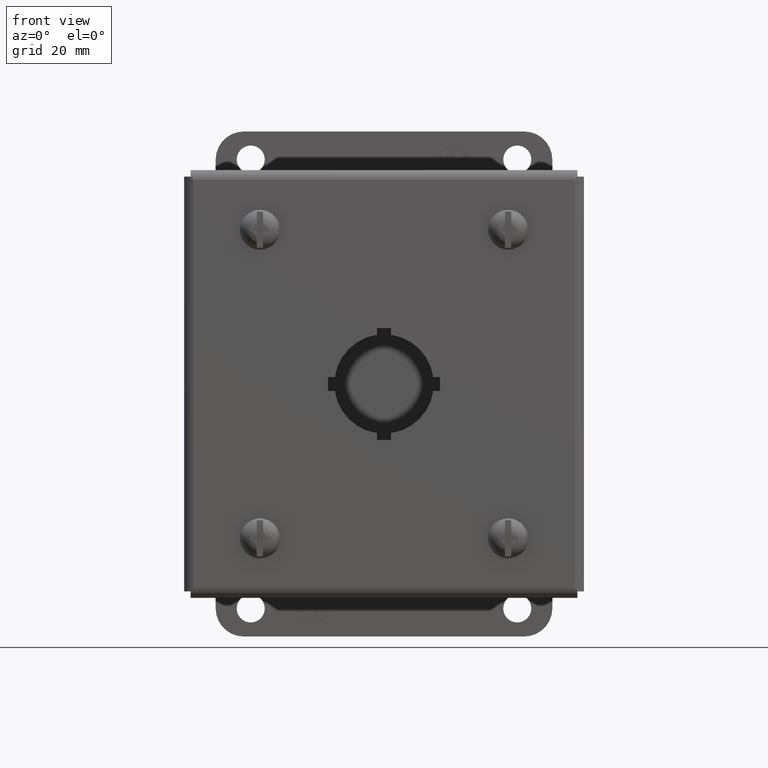
[diagram: clean part render]
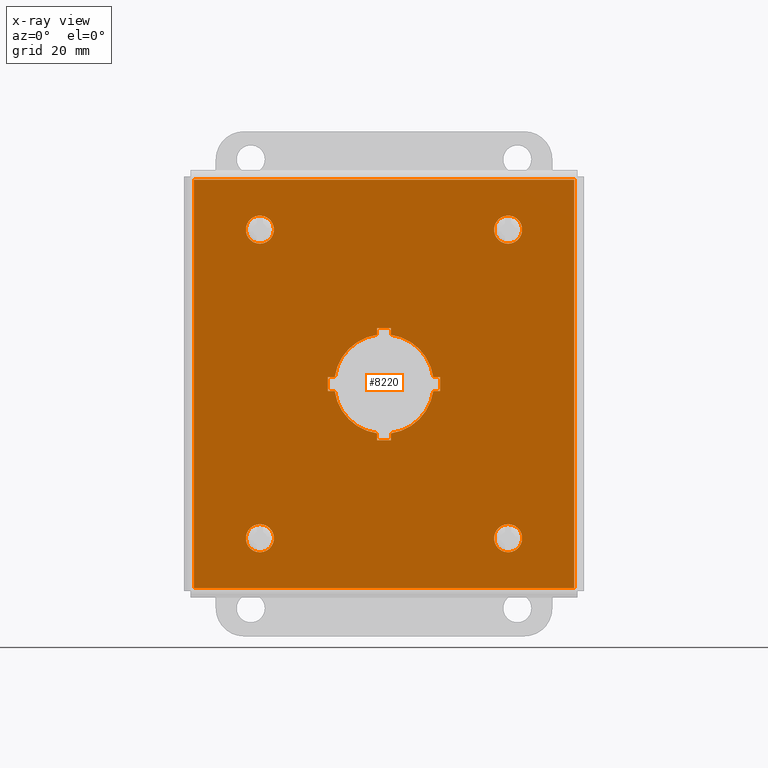
[diagram: x-ray — body ghosted, one internal face saturated and labeled with its STEP entity id]
A machine part, front view, then the same camera in x-ray: the body is ghosted and one INTERNAL B-rep face — a face not visible from any outside direction — is saturated and labeled: STEP entity #8220.
In plain terms, the highlighted planar face has unit normal (0, 1, -0).
Its self-contained STEP definition (entity closure, byte-faithful):
#18 = DIRECTION ( 'NONE',  ( -1.665334536937739988E-16, -2.077938280955059908E-16, -1.000000000000000000 ) ) ;
#203 = DIRECTION ( 'NONE',  ( 7.216449660063512582E-16, 0.0000000000000000000, -1.000000000000000000 ) ) ;
#209 = VERTEX_POINT ( 'NONE', #6006 ) ;
#248 = CARTESIAN_POINT ( 'NONE',  ( -1.695000000000001394, -2.849999999999995648, 1.820000000000002061 ) ) ;
#286 = ORIENTED_EDGE ( 'NONE', *, *, #12027, .T. ) ;
#329 = DIRECTION ( 'NONE',  ( -1.000000000000000000, 1.820053914654879712E-16, 1.665334536937739494E-16 ) ) ;
#417 = VECTOR ( 'NONE', #9454, 39.37007874015748143 ) ;
#459 = VERTEX_POINT ( 'NONE', #248 ) ;
#640 = CIRCLE ( 'NONE', #8115, 0.1249999999999999029 ) ;
#652 = ORIENTED_EDGE ( 'NONE', *, *, #4583, .T. ) ;
#693 = DIRECTION ( 'NONE',  ( 1.000000000000000000, -1.820053914654879712E-16, -1.665334536937739494E-16 ) ) ;
#800 = ORIENTED_EDGE ( 'NONE', *, *, #11053, .T. ) ;
#856 = DIRECTION ( 'NONE',  ( 0.0000000000000000000, 0.0000000000000000000, -1.000000000000000000 ) ) ;
#873 = DIRECTION ( 'NONE',  ( 0.0000000000000000000, 0.0000000000000000000, -1.000000000000000000 ) ) ;
#927 = VECTOR ( 'NONE', #9736, 39.37007874015748143 ) ;
#1003 = VECTOR ( 'NONE', #18, 39.37007874015748143 ) ;
#1010 = CARTESIAN_POINT ( 'NONE',  ( -0.06249999999999970857, -2.849999999999996536, -1.905999999999999028 ) ) ;
#1092 = CARTESIAN_POINT ( 'NONE',  ( 0.06250000000000073552, -2.849999999999996536, -1.905999999999999028 ) ) ;
#1105 = VERTEX_POINT ( 'NONE', #7803 ) ;
#1136 = ORIENTED_EDGE ( 'NONE', *, *, #14005, .T. ) ;
#1168 = DIRECTION ( 'NONE',  ( -1.820053914654879712E-16, -1.000000000000000000, 2.077938280955060154E-16 ) ) ;
#1188 = VERTEX_POINT ( 'NONE', #13810 ) ;
#1223 = DIRECTION ( 'NONE',  ( -1.820053914654879712E-16, -1.000000000000000000, 2.077938280955060154E-16 ) ) ;
#1307 = CARTESIAN_POINT ( 'NONE',  ( 1.106000000000000094, -2.849999999999996536, -1.249999999999999334 ) ) ;
#1333 = DIRECTION ( 'NONE',  ( -1.820053914654879712E-16, -1.000000000000000000, 2.077938280955060154E-16 ) ) ;
#1348 = EDGE_CURVE ( 'NONE', #1188, #459, #5438, .T. ) ;
#1355 = EDGE_CURVE ( 'NONE', #9677, #209, #4401, .T. ) ;
#1458 = LINE ( 'NONE', #3512, #4715 ) ;
#1499 = VERTEX_POINT ( 'NONE', #2602 ) ;
#1525 = ORIENTED_EDGE ( 'NONE', *, *, #12768, .T. ) ;
#1532 = DIRECTION ( 'NONE',  ( -1.820053914654879712E-16, -1.000000000000000000, 2.077938280955060154E-16 ) ) ;
#1574 = ORIENTED_EDGE ( 'NONE', *, *, #4890, .T. ) ;
#1677 = CARTESIAN_POINT ( 'NONE',  ( 1.781000000000000583, -2.849999999999996536, -0.06349999999999930700 ) ) ;
#1796 = VECTOR ( 'NONE', #12936, 39.37007874015748143 ) ;
#1838 = CARTESIAN_POINT ( 'NONE',  ( -1.105999999999999650, -2.849999999999995648, 1.250000000000001332 ) ) ;
#1899 = CARTESIAN_POINT ( 'NONE',  ( 0.5000000000000002220, -2.849999999999996092, -0.06349999999999908495 ) ) ;
#2015 = CARTESIAN_POINT ( 'NONE',  ( 1.781000000000000139, -2.849999999999996536, -1.905999999999999250 ) ) ;
#2077 = ORIENTED_EDGE ( 'NONE', *, *, #10234, .T. ) ;
#2173 = CIRCLE ( 'NONE', #5823, 0.4430000000000000049 ) ;
#2193 = AXIS2_PLACEMENT_3D ( 'NONE', #11035, #1532, #5869 ) ;
#2199 = CARTESIAN_POINT ( 'NONE',  ( -1.106000000000000094, -2.849999999999996092, -1.374999999999998668 ) ) ;
#2393 = ORIENTED_EDGE ( 'NONE', *, *, #7149, .T. ) ;
#2406 = EDGE_LOOP ( 'NONE', ( #3181, #800 ) ) ;
#2460 = VERTEX_POINT ( 'NONE', #5458 ) ;
#2504 = DIRECTION ( 'NONE',  ( 0.0000000000000000000, 0.0000000000000000000, -1.000000000000000000 ) ) ;
#2526 = DIRECTION ( 'NONE',  ( 0.0000000000000000000, 0.0000000000000000000, -1.000000000000000000 ) ) ;
#2535 = VERTEX_POINT ( 'NONE', #6432 ) ;
#2553 = VERTEX_POINT ( 'NONE', #14046 ) ;
#2602 = CARTESIAN_POINT ( 'NONE',  ( 1.694999999999999174, -2.849999999999996092, 1.820000000000002061 ) ) ;
#2669 = DIRECTION ( 'NONE',  ( -1.820053914654879712E-16, -1.000000000000000000, 2.077938280955060154E-16 ) ) ;
#2730 = AXIS2_PLACEMENT_3D ( 'NONE', #2015, #3367, #8604 ) ;
#2744 = EDGE_CURVE ( 'NONE', #11993, #6584, #11841, .T. ) ;
#2769 = VERTEX_POINT ( 'NONE', #13840 ) ;
#2782 = VERTEX_POINT ( 'NONE', #7294 ) ;
#2925 = ORIENTED_EDGE ( 'NONE', *, *, #3257, .T. ) ;
#2961 = CARTESIAN_POINT ( 'NONE',  ( -0.4999999999999996669, -2.849999999999996092, -0.06350000000000004252 ) ) ;
#2976 = CARTESIAN_POINT ( 'NONE',  ( 1.781000000000000583, -2.849999999999996536, -0.06350000000000038947 ) ) ;
#3014 = AXIS2_PLACEMENT_3D ( 'NONE', #10522, #11723, #6327 ) ;
#3180 = EDGE_CURVE ( 'NONE', #2769, #11993, #7457, .T. ) ;
#3181 = ORIENTED_EDGE ( 'NONE', *, *, #12422, .T. ) ;
#3183 = CARTESIAN_POINT ( 'NONE',  ( -0.06250000000000018041, -2.849999999999996092, -0.5009999999999991127 ) ) ;
#3245 = VECTOR ( 'NONE', #12086, 39.37007874015748143 ) ;
#3257 = EDGE_CURVE ( 'NONE', #11938, #13709, #4200, .T. ) ;
#3285 = CARTESIAN_POINT ( 'NONE',  ( 1.781000000000000139, -2.849999999999996536, -1.819999999999999396 ) ) ;
#3311 = CARTESIAN_POINT ( 'NONE',  ( 0.06250000000000073552, -2.849999999999996536, -1.905999999999999028 ) ) ;
#3365 = LINE ( 'NONE', #13867, #4061 ) ;
#3367 = DIRECTION ( 'NONE',  ( 1.820053914654879465E-16, 1.000000000000000000, -2.077938280955060154E-16 ) ) ;
#3386 = VECTOR ( 'NONE', #9748, 39.37007874015748143 ) ;
#3512 = CARTESIAN_POINT ( 'NONE',  ( 1.781000000000000583, -2.849999999999996092, 0.4990000000000007208 ) ) ;
#3602 = AXIS2_PLACEMENT_3D ( 'NONE', #2199, #9508, #856 ) ;
#3637 = DIRECTION ( 'NONE',  ( 1.000000000000000000, -1.820053914654879712E-16, -1.665334536937739494E-16 ) ) ;
#3685 = VERTEX_POINT ( 'NONE', #8710 ) ;
#3711 = CARTESIAN_POINT ( 'NONE',  ( 1.695000000000002505, -2.849999999999996536, -1.819999999999997620 ) ) ;
#3803 = CARTESIAN_POINT ( 'NONE',  ( 0.06250000000000062450, -2.849999999999996092, -0.4395689797511896368 ) ) ;
#4061 = VECTOR ( 'NONE', #4215, 39.37007874015748143 ) ;
#4133 = CARTESIAN_POINT ( 'NONE',  ( 1.695000000000000062, -2.849999999999996536, -1.905999999999999250 ) ) ;
#4165 = DIRECTION ( 'NONE',  ( 0.0000000000000000000, 0.0000000000000000000, -1.000000000000000000 ) ) ;
#4200 = LINE ( 'NONE', #8590, #12946 ) ;
#4215 = DIRECTION ( 'NONE',  ( 1.000000000000000000, -1.820053914654879712E-16, -1.665334536937739494E-16 ) ) ;
#4288 = FACE_BOUND ( 'NONE', #10444, .T. ) ;
#4289 = EDGE_CURVE ( 'NONE', #6584, #12831, #5751, .T. ) ;
#4311 = EDGE_CURVE ( 'NONE', #1105, #11938, #13735, .T. ) ;
#4401 = CIRCLE ( 'NONE', #7326, 0.1249999999999999029 ) ;
#4511 = CIRCLE ( 'NONE', #12437, 0.1249999999999999029 ) ;
#4561 = CARTESIAN_POINT ( 'NONE',  ( -0.06249999999999880651, -2.849999999999996092, 0.4375689797511911339 ) ) ;
#4583 = EDGE_CURVE ( 'NONE', #3685, #6076, #6410, .T. ) ;
#4591 = VERTEX_POINT ( 'NONE', #11176 ) ;
#4625 = CIRCLE ( 'NONE', #3014, 0.4430000000000000049 ) ;
#4715 = VECTOR ( 'NONE', #329, 39.37007874015748143 ) ;
#4890 = EDGE_CURVE ( 'NONE', #12343, #1105, #4625, .T. ) ;
#4911 = ORIENTED_EDGE ( 'NONE', *, *, #10982, .T. ) ;
#4917 = EDGE_CURVE ( 'NONE', #6188, #1188, #13487, .T. ) ;
#5109 = EDGE_LOOP ( 'NONE', ( #1525, #6906 ) ) ;
#5401 = CARTESIAN_POINT ( 'NONE',  ( -0.06250000000000052736, -2.849999999999996092, -0.4395689797511946884 ) ) ;
#5413 = CARTESIAN_POINT ( 'NONE',  ( -1.106000000000000094, -2.849999999999996092, -1.249999999999998668 ) ) ;
#5438 = LINE ( 'NONE', #8758, #9829 ) ;
#5458 = CARTESIAN_POINT ( 'NONE',  ( -0.4385689797511952426, -2.849999999999996092, 0.06150000000000145628 ) ) ;
#5469 = CARTESIAN_POINT ( 'NONE',  ( 0.4385689797511907462, -2.849999999999996092, 0.06149999999999967298 ) ) ;
#5595 = DIRECTION ( 'NONE',  ( -1.820053914654879712E-16, -1.000000000000000000, 2.077938280955060154E-16 ) ) ;
#5639 = EDGE_LOOP ( 'NONE', ( #12931, #6179, #6022, #8260 ) ) ;
#5751 = CIRCLE ( 'NONE', #7302, 0.4430000000000000049 ) ;
#5823 = AXIS2_PLACEMENT_3D ( 'NONE', #13067, #10937, #7737 ) ;
#5840 = VERTEX_POINT ( 'NONE', #11321 ) ;
#5844 = VECTOR ( 'NONE', #8643, 39.37007874015748143 ) ;
#5869 = DIRECTION ( 'NONE',  ( 0.0000000000000000000, 0.0000000000000000000, -1.000000000000000000 ) ) ;
#5914 = CARTESIAN_POINT ( 'NONE',  ( 0.06250000000000095757, -2.849999999999996092, -0.5009999999999991127 ) ) ;
#5965 = EDGE_CURVE ( 'NONE', #1499, #6188, #8527, .T. ) ;
#6006 = CARTESIAN_POINT ( 'NONE',  ( -1.106000000000000094, -2.849999999999996092, -1.499999999999998446 ) ) ;
#6022 = ORIENTED_EDGE ( 'NONE', *, *, #1348, .T. ) ;
#6076 = VERTEX_POINT ( 'NONE', #1307 ) ;
#6179 = ORIENTED_EDGE ( 'NONE', *, *, #4917, .T. ) ;
#6188 = VERTEX_POINT ( 'NONE', #3711 ) ;
#6319 = ORIENTED_EDGE ( 'NONE', *, *, #4289, .T. ) ;
#6327 = DIRECTION ( 'NONE',  ( -1.665334536937740234E-16, 0.0000000000000000000, -1.000000000000000000 ) ) ;
#6365 = DIRECTION ( 'NONE',  ( -1.820053914654879712E-16, -1.000000000000000000, 2.077938280955060154E-16 ) ) ;
#6382 = CARTESIAN_POINT ( 'NONE',  ( 1.106000000000000760, -2.849999999999996092, 1.250000000000000888 ) ) ;
#6410 = CIRCLE ( 'NONE', #8913, 0.1249999999999999029 ) ;
#6432 = CARTESIAN_POINT ( 'NONE',  ( 0.06250000000000112410, -2.849999999999996092, 0.4375689797511964629 ) ) ;
#6483 = VECTOR ( 'NONE', #7637, 39.37007874015748143 ) ;
#6506 = VERTEX_POINT ( 'NONE', #5469 ) ;
#6556 = CARTESIAN_POINT ( 'NONE',  ( 1.106000000000000094, -2.849999999999996536, -1.374999999999999112 ) ) ;
#6584 = VERTEX_POINT ( 'NONE', #13610 ) ;
#6715 = ORIENTED_EDGE ( 'NONE', *, *, #9024, .T. ) ;
#6738 = AXIS2_PLACEMENT_3D ( 'NONE', #8657, #1223, #2504 ) ;
#6906 = ORIENTED_EDGE ( 'NONE', *, *, #1355, .T. ) ;
#7030 = EDGE_CURVE ( 'NONE', #2460, #2769, #7127, .T. ) ;
#7031 = LINE ( 'NONE', #10095, #10351 ) ;
#7127 = LINE ( 'NONE', #11874, #3386 ) ;
#7135 = EDGE_CURVE ( 'NONE', #459, #1499, #3365, .T. ) ;
#7149 = EDGE_CURVE ( 'NONE', #10332, #12343, #11801, .T. ) ;
#7175 = CIRCLE ( 'NONE', #6738, 0.1249999999999999029 ) ;
#7294 = CARTESIAN_POINT ( 'NONE',  ( -1.105999999999999650, -2.849999999999995648, 1.500000000000001110 ) ) ;
#7302 = AXIS2_PLACEMENT_3D ( 'NONE', #8770, #5595, #203 ) ;
#7326 = AXIS2_PLACEMENT_3D ( 'NONE', #9830, #2669, #2526 ) ;
#7457 = LINE ( 'NONE', #10724, #927 ) ;
#7471 = FACE_OUTER_BOUND ( 'NONE', #5639, .T. ) ;
#7491 = DIRECTION ( 'NONE',  ( -1.820053914654879712E-16, -1.000000000000000000, 2.077938280955060154E-16 ) ) ;
#7529 = CARTESIAN_POINT ( 'NONE',  ( 1.106000000000000760, -2.849999999999996092, 1.375000000000000666 ) ) ;
#7637 = DIRECTION ( 'NONE',  ( 1.665334536937739988E-16, 2.077938280955059908E-16, 1.000000000000000000 ) ) ;
#7673 = DIRECTION ( 'NONE',  ( 1.665334536937739988E-16, 2.077938280955059908E-16, 1.000000000000000000 ) ) ;
#7696 = CARTESIAN_POINT ( 'NONE',  ( 0.5000000000000002220, -2.849999999999996092, 0.06150000000000022810 ) ) ;
#7737 = DIRECTION ( 'NONE',  ( -1.665334536937740234E-16, 0.0000000000000000000, -1.000000000000000000 ) ) ;
#7752 = CARTESIAN_POINT ( 'NONE',  ( -0.06250000000000080491, -2.849999999999996536, -1.905999999999999028 ) ) ;
#7803 = CARTESIAN_POINT ( 'NONE',  ( 0.4385689797511959087, -2.849999999999996092, -0.06349999999999907108 ) ) ;
#7806 = ORIENTED_EDGE ( 'NONE', *, *, #11238, .T. ) ;
#7816 = LINE ( 'NONE', #12289, #11016 ) ;
#7891 = DIRECTION ( 'NONE',  ( -1.000000000000000000, 1.820053914654879712E-16, 1.665334536937739494E-16 ) ) ;
#7939 = EDGE_CURVE ( 'NONE', #6076, #3685, #10651, .T. ) ;
#7942 = DIRECTION ( 'NONE',  ( -1.000000000000000000, 1.820053914654879712E-16, 1.665334536937739494E-16 ) ) ;
#8115 = AXIS2_PLACEMENT_3D ( 'NONE', #9551, #7491, #4165 ) ;
#8220 = ADVANCED_FACE ( 'NONE', ( #7471, #9750, #11803, #10885, #8748, #4288 ), #9605, .T. ) ;
#8260 = ORIENTED_EDGE ( 'NONE', *, *, #7135, .T. ) ;
#8309 = CIRCLE ( 'NONE', #2193, 0.1249999999999999029 ) ;
#8392 = EDGE_CURVE ( 'NONE', #12831, #9030, #9184, .T. ) ;
#8463 = CIRCLE ( 'NONE', #13918, 0.4430000000000000049 ) ;
#8527 = LINE ( 'NONE', #4133, #1003 ) ;
#8549 = VERTEX_POINT ( 'NONE', #6382 ) ;
#8590 = CARTESIAN_POINT ( 'NONE',  ( 0.4999999999999997780, -2.849999999999996536, -1.905999999999999028 ) ) ;
#8594 = DIRECTION ( 'NONE',  ( -1.820053914654879712E-16, -1.000000000000000000, 2.077938280955060154E-16 ) ) ;
#8596 = ORIENTED_EDGE ( 'NONE', *, *, #7939, .T. ) ;
#8604 = DIRECTION ( 'NONE',  ( -1.665334536937739988E-16, -2.077938280955059908E-16, -1.000000000000000000 ) ) ;
#8643 = DIRECTION ( 'NONE',  ( 1.000000000000000000, -1.820053914654879712E-16, -1.665334536937739494E-16 ) ) ;
#8657 = CARTESIAN_POINT ( 'NONE',  ( -1.105999999999999650, -2.849999999999995648, 1.375000000000001332 ) ) ;
#8710 = CARTESIAN_POINT ( 'NONE',  ( 1.106000000000000094, -2.849999999999996536, -1.499999999999999112 ) ) ;
#8748 = FACE_BOUND ( 'NONE', #2406, .T. ) ;
#8758 = CARTESIAN_POINT ( 'NONE',  ( -1.695000000000003837, -2.849999999999996092, -1.905999999999998806 ) ) ;
#8770 = CARTESIAN_POINT ( 'NONE',  ( 2.833925732262653705E-16, -2.849999999999996092, -0.0009999999999993299839 ) ) ;
#8791 = ORIENTED_EDGE ( 'NONE', *, *, #4311, .T. ) ;
#8855 = VERTEX_POINT ( 'NONE', #1838 ) ;
#8897 = EDGE_LOOP ( 'NONE', ( #1136, #286 ) ) ;
#8902 = ORIENTED_EDGE ( 'NONE', *, *, #3180, .T. ) ;
#8913 = AXIS2_PLACEMENT_3D ( 'NONE', #6556, #1168, #10041 ) ;
#9008 = ORIENTED_EDGE ( 'NONE', *, *, #10477, .T. ) ;
#9024 = EDGE_CURVE ( 'NONE', #9914, #2460, #8463, .T. ) ;
#9030 = VERTEX_POINT ( 'NONE', #3183 ) ;
#9070 = AXIS2_PLACEMENT_3D ( 'NONE', #10974, #1333, #9915 ) ;
#9184 = LINE ( 'NONE', #7752, #3245 ) ;
#9454 = DIRECTION ( 'NONE',  ( -1.665334536937739988E-16, -2.077938280955059908E-16, -1.000000000000000000 ) ) ;
#9508 = DIRECTION ( 'NONE',  ( -1.820053914654879712E-16, -1.000000000000000000, 2.077938280955060154E-16 ) ) ;
#9551 = CARTESIAN_POINT ( 'NONE',  ( -1.105999999999999650, -2.849999999999995648, 1.375000000000001332 ) ) ;
#9605 = PLANE ( 'NONE',  #2730 ) ;
#9624 = ORIENTED_EDGE ( 'NONE', *, *, #9859, .T. ) ;
#9677 = VERTEX_POINT ( 'NONE', #5413 ) ;
#9713 = CIRCLE ( 'NONE', #3602, 0.1249999999999999029 ) ;
#9736 = DIRECTION ( 'NONE',  ( -1.665334536937739988E-16, -2.077938280955059908E-16, -1.000000000000000000 ) ) ;
#9748 = DIRECTION ( 'NONE',  ( -1.000000000000000000, 1.820053914654879712E-16, 1.665334536937739494E-16 ) ) ;
#9750 = FACE_BOUND ( 'NONE', #8897, .T. ) ;
#9829 = VECTOR ( 'NONE', #13022, 39.37007874015748143 ) ;
#9830 = CARTESIAN_POINT ( 'NONE',  ( -1.106000000000000094, -2.849999999999996092, -1.374999999999998668 ) ) ;
#9835 = EDGE_CURVE ( 'NONE', #6506, #2535, #2173, .T. ) ;
#9852 = ORIENTED_EDGE ( 'NONE', *, *, #7030, .T. ) ;
#9859 = EDGE_CURVE ( 'NONE', #13709, #6506, #7816, .T. ) ;
#9914 = VERTEX_POINT ( 'NONE', #4561 ) ;
#9915 = DIRECTION ( 'NONE',  ( 0.0000000000000000000, 0.0000000000000000000, -1.000000000000000000 ) ) ;
#10041 = DIRECTION ( 'NONE',  ( 0.0000000000000000000, 0.0000000000000000000, -1.000000000000000000 ) ) ;
#10095 = CARTESIAN_POINT ( 'NONE',  ( 1.781000000000000583, -2.849999999999996536, -0.5009999999999995568 ) ) ;
#10234 = EDGE_CURVE ( 'NONE', #9030, #10332, #7031, .T. ) ;
#10332 = VERTEX_POINT ( 'NONE', #5914 ) ;
#10351 = VECTOR ( 'NONE', #3637, 39.37007874015748143 ) ;
#10416 = ORIENTED_EDGE ( 'NONE', *, *, #2744, .T. ) ;
#10444 = EDGE_LOOP ( 'NONE', ( #9852, #8902, #10416, #6319, #12684, #2077, #2393, #1574, #8791, #2925, #9624, #11668, #9008, #4911, #7806, #6715 ) ) ;
#10477 = EDGE_CURVE ( 'NONE', #2535, #2553, #11755, .T. ) ;
#10507 = EDGE_LOOP ( 'NONE', ( #652, #8596 ) ) ;
#10522 = CARTESIAN_POINT ( 'NONE',  ( 2.833925732262653705E-16, -2.849999999999996092, -0.0009999999999993299839 ) ) ;
#10651 = CIRCLE ( 'NONE', #9070, 0.1249999999999999029 ) ;
#10724 = CARTESIAN_POINT ( 'NONE',  ( -0.4999999999999999445, -2.849999999999996092, -1.905999999999999028 ) ) ;
#10885 = FACE_BOUND ( 'NONE', #10507, .T. ) ;
#10937 = DIRECTION ( 'NONE',  ( -1.820053914654879712E-16, -1.000000000000000000, 2.077938280955060154E-16 ) ) ;
#10958 = VECTOR ( 'NONE', #7942, 39.37007874015748143 ) ;
#10974 = CARTESIAN_POINT ( 'NONE',  ( 1.106000000000000094, -2.849999999999996536, -1.374999999999999112 ) ) ;
#10982 = EDGE_CURVE ( 'NONE', #2553, #4591, #1458, .T. ) ;
#11016 = VECTOR ( 'NONE', #7891, 39.37007874015748143 ) ;
#11035 = CARTESIAN_POINT ( 'NONE',  ( 1.106000000000000760, -2.849999999999996092, 1.375000000000000666 ) ) ;
#11053 = EDGE_CURVE ( 'NONE', #5840, #8549, #8309, .T. ) ;
#11176 = CARTESIAN_POINT ( 'NONE',  ( -0.06249999999999930611, -2.849999999999996092, 0.4990000000000011093 ) ) ;
#11238 = EDGE_CURVE ( 'NONE', #4591, #9914, #11650, .T. ) ;
#11321 = CARTESIAN_POINT ( 'NONE',  ( 1.106000000000000760, -2.849999999999996092, 1.500000000000000666 ) ) ;
#11611 = VECTOR ( 'NONE', #693, 39.37007874015748143 ) ;
#11650 = LINE ( 'NONE', #1010, #417 ) ;
#11668 = ORIENTED_EDGE ( 'NONE', *, *, #9835, .T. ) ;
#11723 = DIRECTION ( 'NONE',  ( -1.820053914654879712E-16, -1.000000000000000000, 2.077938280955060154E-16 ) ) ;
#11755 = LINE ( 'NONE', #3311, #6483 ) ;
#11801 = LINE ( 'NONE', #1092, #1796 ) ;
#11803 = FACE_BOUND ( 'NONE', #5109, .T. ) ;
#11841 = LINE ( 'NONE', #2976, #5844 ) ;
#11874 = CARTESIAN_POINT ( 'NONE',  ( 1.781000000000000583, -2.849999999999996536, 0.06150000000000113709 ) ) ;
#11938 = VERTEX_POINT ( 'NONE', #1899 ) ;
#11993 = VERTEX_POINT ( 'NONE', #2961 ) ;
#12027 = EDGE_CURVE ( 'NONE', #2782, #8855, #640, .T. ) ;
#12086 = DIRECTION ( 'NONE',  ( -1.665334536937739988E-16, -2.077938280955059908E-16, -1.000000000000000000 ) ) ;
#12289 = CARTESIAN_POINT ( 'NONE',  ( 1.781000000000000583, -2.849999999999996536, 0.06150000000000004768 ) ) ;
#12343 = VERTEX_POINT ( 'NONE', #3803 ) ;
#12422 = EDGE_CURVE ( 'NONE', #8549, #5840, #4511, .T. ) ;
#12437 = AXIS2_PLACEMENT_3D ( 'NONE', #7529, #8594, #873 ) ;
#12684 = ORIENTED_EDGE ( 'NONE', *, *, #8392, .T. ) ;
#12768 = EDGE_CURVE ( 'NONE', #209, #9677, #9713, .T. ) ;
#12831 = VERTEX_POINT ( 'NONE', #5401 ) ;
#12904 = CARTESIAN_POINT ( 'NONE',  ( 2.833925732262653705E-16, -2.849999999999996092, -0.0009999999999993299839 ) ) ;
#12931 = ORIENTED_EDGE ( 'NONE', *, *, #5965, .T. ) ;
#12936 = DIRECTION ( 'NONE',  ( 1.665334536937739988E-16, 2.077938280955059908E-16, 1.000000000000000000 ) ) ;
#12946 = VECTOR ( 'NONE', #7673, 39.37007874015748143 ) ;
#13022 = DIRECTION ( 'NONE',  ( 1.665334536937739988E-16, 2.077938280955059908E-16, 1.000000000000000000 ) ) ;
#13067 = CARTESIAN_POINT ( 'NONE',  ( 2.833925732262653705E-16, -2.849999999999996092, -0.0009999999999993299839 ) ) ;
#13487 = LINE ( 'NONE', #3285, #10958 ) ;
#13610 = CARTESIAN_POINT ( 'NONE',  ( -0.4385689797511900245, -2.849999999999996092, -0.06349999999999959843 ) ) ;
#13709 = VERTEX_POINT ( 'NONE', #7696 ) ;
#13735 = LINE ( 'NONE', #1677, #11611 ) ;
#13810 = CARTESIAN_POINT ( 'NONE',  ( -1.694999999999993179, -2.850000000000000533, -1.819999999999992069 ) ) ;
#13840 = CARTESIAN_POINT ( 'NONE',  ( -0.4999999999999996669, -2.849999999999996092, 0.06150000000000111627 ) ) ;
#13867 = CARTESIAN_POINT ( 'NONE',  ( 1.781000000000000805, -2.849999999999996092, 1.820000000000001394 ) ) ;
#13902 = DIRECTION ( 'NONE',  ( -1.665334536937740234E-16, 0.0000000000000000000, -1.000000000000000000 ) ) ;
#13918 = AXIS2_PLACEMENT_3D ( 'NONE', #12904, #6365, #13902 ) ;
#14005 = EDGE_CURVE ( 'NONE', #8855, #2782, #7175, .T. ) ;
#14046 = CARTESIAN_POINT ( 'NONE',  ( 0.06250000000000113798, -2.849999999999996092, 0.4990000000000011093 ) ) ;